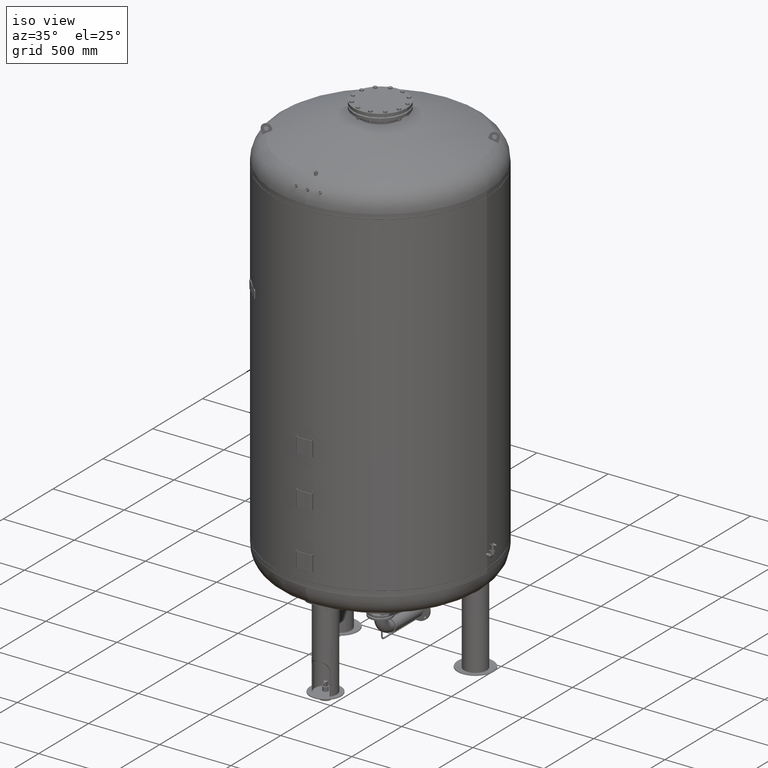
[diagram: clean part render]
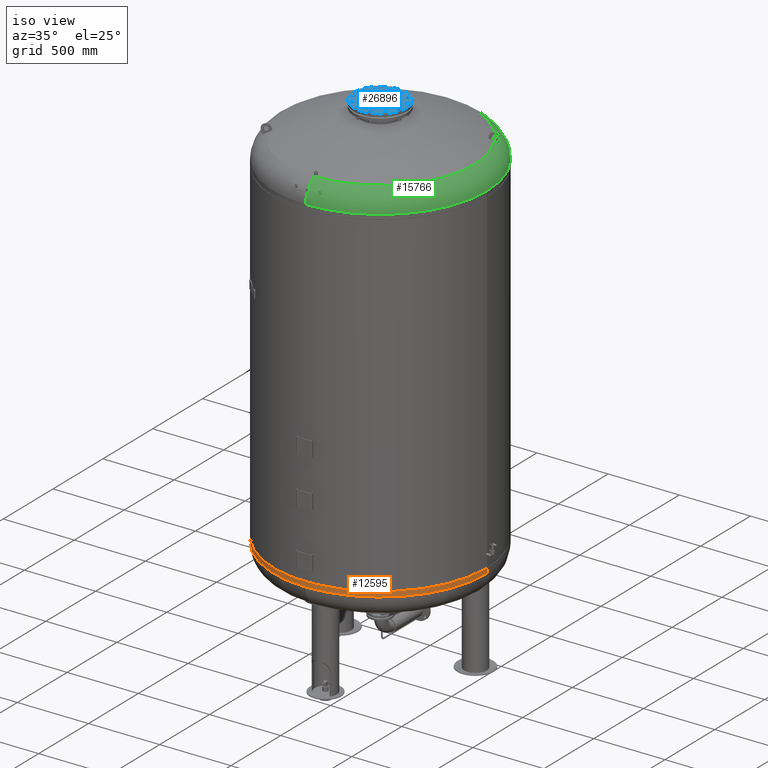
[diagram: same view with three faces highlighted in distinct colors, each labeled with its STEP entity id]
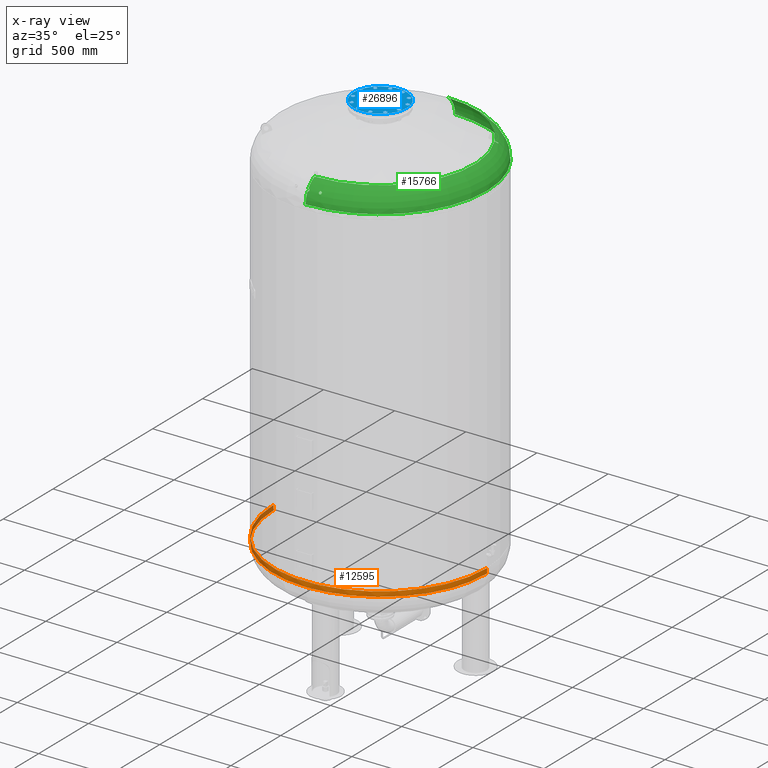
[diagram: x-ray of the same camera — body ghosted, the three highlighted faces saturated]
A machine part, iso view with three faces highlighted in distinct colors.
The next image is the same camera in x-ray (body ghosted, the three faces saturated) — at least one of them is partly hidden behind the body in this view.
Their STEP definitions:

[orange] entity #12595 — the highlighted cylindrical surface (partial cylindrical patch) has radius 750 mm, axis along (-0, -0, 1).
#12403=CARTESIAN_POINT('',(-750.0,-6.062002E-014,818.999999999999890));
#12404=VERTEX_POINT('',#12403);
#12405=CARTESIAN_POINT('',(-750.0,-5.423428E-014,784.237667415897930));
#12406=VERTEX_POINT('',#12405);
#12407=CARTESIAN_POINT('',(-750.0,-6.062002E-014,818.999999999999890));
#12408=DIRECTION('',(0.0,0.0,-1.0));
#12409=VECTOR('',#12408,34.762332584101955);
#12410=LINE('',#12407,#12409);
#12411=EDGE_CURVE('',#12404,#12406,#12410,.T.);
#12413=CARTESIAN_POINT('',(750.0,3.122546E-014,819.000000000000110));
#12414=VERTEX_POINT('',#12413);
#12422=CARTESIAN_POINT('',(750.0,3.761120E-014,784.237667415898160));
#12423=VERTEX_POINT('',#12422);
#12424=CARTESIAN_POINT('',(750.0,3.122546E-014,819.000000000000110));
#12425=DIRECTION('',(0.0,0.0,-1.0));
#12426=VECTOR('',#12425,34.762332584101955);
#12427=LINE('',#12424,#12426);
#12428=EDGE_CURVE('',#12414,#12423,#12427,.T.);
#12454=CARTESIAN_POINT('',(-7.105427E-014,-750.0,784.237667415898040));
#12455=VERTEX_POINT('',#12454);
#12465=CARTESIAN_POINT('',(-5.075605E-014,-5.423428E-014,784.237667415898160));
#12466=DIRECTION('',(0.0,0.0,1.0));
#12467=DIRECTION('',(-1.0,0.0,0.0));
#12468=AXIS2_PLACEMENT_3D('',#12465,#12466,#12467);
#12469=CIRCLE('',#12468,750.0);
#12470=EDGE_CURVE('',#12406,#12455,#12469,.T.);
#12567=CARTESIAN_POINT('',(-5.075605E-014,-5.423428E-014,784.237667415898160));
#12568=DIRECTION('',(0.0,0.0,1.0));
#12569=DIRECTION('',(-1.0,0.0,0.0));
#12570=AXIS2_PLACEMENT_3D('',#12567,#12568,#12569);
#12571=CIRCLE('',#12570,750.0);
#12572=EDGE_CURVE('',#12455,#12423,#12571,.T.);
#12577=CARTESIAN_POINT('',(-5.374415E-014,-5.742715E-014,801.618833707949080));
#12578=DIRECTION('',(-1.719159E-016,-1.836970E-016,1.0));
#12579=DIRECTION('',(-1.0,0.0,0.0));
#12580=AXIS2_PLACEMENT_3D('',#12577,#12578,#12579);
#12581=CYLINDRICAL_SURFACE('',#12580,750.0);
#12582=ORIENTED_EDGE('',*,*,#12411,.T.);
#12583=ORIENTED_EDGE('',*,*,#12470,.T.);
#12584=ORIENTED_EDGE('',*,*,#12572,.T.);
#12585=ORIENTED_EDGE('',*,*,#12428,.F.);
#12586=CARTESIAN_POINT('',(-5.673224E-014,-6.062002E-014,819.0));
#12587=DIRECTION('',(0.0,0.0,1.0));
#12588=DIRECTION('',(-1.0,0.0,0.0));
#12589=AXIS2_PLACEMENT_3D('',#12586,#12587,#12588);
#12590=CIRCLE('',#12589,750.0);
#12591=EDGE_CURVE('',#12404,#12414,#12590,.T.);
#12592=ORIENTED_EDGE('',*,*,#12591,.F.);
#12593=EDGE_LOOP('',(#12582,#12583,#12584,#12585,#12592));
#12594=FACE_OUTER_BOUND('',#12593,.T.);
#12595=ADVANCED_FACE('',(#12594),#12581,.T.);

[blue] entity #26896 — the highlighted planar face has unit normal (0, 0, 1).
#19134=CARTESIAN_POINT('',(-187.500000000000000,0.0,3590.0));
#19135=VERTEX_POINT('',#19134);
#19151=CARTESIAN_POINT('',(187.500000000000000,-2.296137E-014,3590.0));
#19152=VERTEX_POINT('',#19151);
#19159=CARTESIAN_POINT('',(0.0,0.0,3590.0));
#19160=DIRECTION('',(0.0,0.0,-1.0));
#19161=DIRECTION('',(-1.0,0.0,0.0));
#19162=AXIS2_PLACEMENT_3D('',#19159,#19160,#19161);
#19163=CIRCLE('',#19162,187.500000000000000);
#19164=EDGE_CURVE('',#19152,#19135,#19163,.T.);
#24390=CARTESIAN_POINT('',(157.729139400922860,30.104983413641008,3590.0));
#24391=VERTEX_POINT('',#24390);
#24392=CARTESIAN_POINT('',(148.288440171855850,40.247625971983268,3590.0));
#24393=VERTEX_POINT('',#24392);
#24394=CARTESIAN_POINT('',(157.729139400922860,30.104983413641008,3590.0));
#24395=DIRECTION('',(-0.681323780155013,0.731982176419128,0.0));
#24396=VECTOR('',#24395,13.856406460551090);
#24397=LINE('',#24394,#24396);
#24398=EDGE_CURVE('',#24391,#24393,#24397,.T.);
#24430=CARTESIAN_POINT('',(171.233275132485970,33.209547496330110,3590.0));
#24431=VERTEX_POINT('',#24430);
#24432=CARTESIAN_POINT('',(171.233275132485970,33.209547496330110,3590.0));
#24433=DIRECTION('',(-0.974577049973894,-0.224052613607123,0.0));
#24434=VECTOR('',#24433,13.856406460551119);
#24435=LINE('',#24432,#24434);
#24436=EDGE_CURVE('',#24431,#24391,#24435,.T.);
#24461=CARTESIAN_POINT('',(175.296711634982050,46.456754137361422,3590.0));
#24462=VERTEX_POINT('',#24461);
#24463=CARTESIAN_POINT('',(175.296711634982050,46.456754137361422,3590.0));
#24464=DIRECTION('',(-0.293253269818881,-0.956034790026249,0.0));
#24465=VECTOR('',#24464,13.856406460551076);
#24466=LINE('',#24463,#24465);
#24467=EDGE_CURVE('',#24462,#24431,#24466,.T.);
#24492=CARTESIAN_POINT('',(152.351876674351930,53.494832613014587,3590.0));
#24493=VERTEX_POINT('',#24492);
#24494=CARTESIAN_POINT('',(148.288440171855850,40.247625971983268,3590.0));
#24495=DIRECTION('',(0.293253269818881,0.956034790026249,0.0));
#24496=VECTOR('',#24495,13.856406460551083);
#24497=LINE('',#24494,#24496);
#24498=EDGE_CURVE('',#24393,#24493,#24497,.T.);
#24523=CARTESIAN_POINT('',(165.856012405915040,56.599396695703689,3590.0));
#24524=VERTEX_POINT('',#24523);
#24525=CARTESIAN_POINT('',(152.351876674351930,53.494832613014587,3590.0));
#24526=DIRECTION('',(0.974577049973894,0.224052613607123,0.0));
#24527=VECTOR('',#24526,13.856406460551119);
#24528=LINE('',#24525,#24527);
#24529=EDGE_CURVE('',#24493,#24524,#24528,.T.);
#24554=CARTESIAN_POINT('',(165.856012405915040,56.599396695703689,3590.0));
#24555=DIRECTION('',(0.681323780155012,-0.731982176419129,0.0));
#24556=VECTOR('',#24555,13.856406460551096);
#24557=LINE('',#24554,#24556);
#24558=EDGE_CURVE('',#24524,#24462,#24557,.T.);
#24590=CARTESIAN_POINT('',(121.544949931435720,104.936250117183760,3590.0));
#24591=VERTEX_POINT('',#24590);
#24592=CARTESIAN_POINT('',(108.297743290404380,108.999686619679820,3590.0));
#24593=VERTEX_POINT('',#24592);
#24594=CARTESIAN_POINT('',(121.544949931435720,104.936250117183760,3590.0));
#24595=DIRECTION('',(-0.956034790026250,0.293253269818880,0.0));
#24596=VECTOR('',#24595,13.856406460551101);
#24597=LINE('',#24594,#24596);
#24598=EDGE_CURVE('',#24591,#24593,#24597,.T.);
#24630=CARTESIAN_POINT('',(131.687592489777960,114.376949346250780,3590.0));
#24631=VERTEX_POINT('',#24630);
#24632=CARTESIAN_POINT('',(131.687592489777960,114.376949346250780,3590.0));
#24633=DIRECTION('',(-0.731982176419127,-0.681323780155014,0.0));
#24634=VECTOR('',#24633,13.856406460551080);
#24635=LINE('',#24632,#24634);
#24636=EDGE_CURVE('',#24631,#24591,#24635,.T.);
#24661=CARTESIAN_POINT('',(128.583028407088880,127.881085077813880,3590.0));
#24662=VERTEX_POINT('',#24661);
#24663=CARTESIAN_POINT('',(128.583028407088880,127.881085077813880,3590.0));
#24664=DIRECTION('',(0.224052613607122,-0.974577049973894,0.0));
#24665=VECTOR('',#24664,13.856406460551099);
#24666=LINE('',#24663,#24665);
#24667=EDGE_CURVE('',#24662,#24631,#24666,.T.);
#24692=CARTESIAN_POINT('',(105.193179207715300,122.503822351242900,3590.0));
#24693=VERTEX_POINT('',#24692);
#24694=CARTESIAN_POINT('',(108.297743290404380,108.999686619679820,3590.0));
#24695=DIRECTION('',(-0.224052613607122,0.974577049973894,0.0));
#24696=VECTOR('',#24695,13.856406460551087);
#24697=LINE('',#24694,#24696);
#24698=EDGE_CURVE('',#24593,#24693,#24697,.T.);
#24723=CARTESIAN_POINT('',(115.335821766057560,131.944521580309950,3590.0));
#24724=VERTEX_POINT('',#24723);
#24725=CARTESIAN_POINT('',(105.193179207715300,122.503822351242900,3590.0));
#24726=DIRECTION('',(0.731982176419127,0.681323780155014,0.0));
#24727=VECTOR('',#24726,13.856406460551121);
#24728=LINE('',#24725,#24727);
#24729=EDGE_CURVE('',#24693,#24724,#24728,.T.);
#24754=CARTESIAN_POINT('',(115.335821766057560,131.944521580309950,3590.0));
#24755=DIRECTION('',(0.956034790026249,-0.293253269818881,0.0));
#24756=VECTOR('',#24755,13.856406460551076);
#24757=LINE('',#24754,#24756);
#24758=EDGE_CURVE('',#24724,#24662,#24757,.T.);
#24790=CARTESIAN_POINT('',(52.792889283739193,151.649933345076730,3590.0));
#24791=VERTEX_POINT('',#24790);
#24792=CARTESIAN_POINT('',(39.288753552176118,148.545369262387680,3590.0));
#24793=VERTEX_POINT('',#24792);
#24794=CARTESIAN_POINT('',(52.792889283739193,151.649933345076730,3590.0));
#24795=DIRECTION('',(-0.974577049973894,-0.224052613607120,0.0));
#24796=VECTOR('',#24795,13.856406460551073);
#24797=LINE('',#24794,#24796);
#24798=EDGE_CURVE('',#24791,#24793,#24797,.T.);
#24830=CARTESIAN_POINT('',(56.856325786235274,164.897139986108100,3590.0));
#24831=VERTEX_POINT('',#24830);
#24832=CARTESIAN_POINT('',(56.856325786235274,164.897139986108100,3590.0));
#24833=DIRECTION('',(-0.293253269818881,-0.956034790026249,0.0));
#24834=VECTOR('',#24833,13.856406460551133);
#24835=LINE('',#24832,#24834);
#24836=EDGE_CURVE('',#24831,#24791,#24835,.T.);
#24861=CARTESIAN_POINT('',(47.415626557168267,175.039782544450330,3590.0));
#24862=VERTEX_POINT('',#24861);
#24863=CARTESIAN_POINT('',(47.415626557168267,175.039782544450330,3590.0));
#24864=DIRECTION('',(0.681323780155014,-0.731982176419128,0.0));
#24865=VECTOR('',#24864,13.856406460551069);
#24866=LINE('',#24863,#24865);
#24867=EDGE_CURVE('',#24862,#24831,#24866,.T.);
#24892=CARTESIAN_POINT('',(29.848054323109103,158.688011820729910,3590.0));
#24893=VERTEX_POINT('',#24892);
#24894=CARTESIAN_POINT('',(39.288753552176118,148.545369262387680,3590.0));
#24895=DIRECTION('',(-0.681323780155014,0.731982176419127,0.0));
#24896=VECTOR('',#24895,13.856406460551076);
#24897=LINE('',#24894,#24896);
#24898=EDGE_CURVE('',#24793,#24893,#24897,.T.);
#24923=CARTESIAN_POINT('',(33.911490825605156,171.935218461761250,3590.0));
#24924=VERTEX_POINT('',#24923);
#24925=CARTESIAN_POINT('',(29.848054323109103,158.688011820729910,3590.0));
#24926=DIRECTION('',(0.293253269818879,0.956034790026250,0.0));
#24927=VECTOR('',#24926,13.856406460551097);
#24928=LINE('',#24925,#24927);
#24929=EDGE_CURVE('',#24893,#24924,#24928,.T.);
#24954=CARTESIAN_POINT('',(33.911490825605156,171.935218461761250,3590.0));
#24955=DIRECTION('',(0.974577049973894,0.224052613607121,0.0));
#24956=VECTOR('',#24955,13.856406460551113);
#24957=LINE('',#24954,#24956);
#24958=EDGE_CURVE('',#24924,#24862,#24957,.T.);
#24990=CARTESIAN_POINT('',(-30.104983413641008,157.729139400922860,3590.0));
#24991=VERTEX_POINT('',#24990);
#24992=CARTESIAN_POINT('',(-40.247625971983268,148.288440171855850,3590.0));
#24993=VERTEX_POINT('',#24992);
#24994=CARTESIAN_POINT('',(-30.104983413641008,157.729139400922860,3590.0));
#24995=DIRECTION('',(-0.731982176419128,-0.681323780155013,0.0));
#24996=VECTOR('',#24995,13.856406460551090);
#24997=LINE('',#24994,#24996);
#24998=EDGE_CURVE('',#24991,#24993,#24997,.T.);
#25030=CARTESIAN_POINT('',(-33.209547496330110,171.233275132485970,3590.0));
#25031=VERTEX_POINT('',#25030);
#25032=CARTESIAN_POINT('',(-33.209547496330110,171.233275132485970,3590.0));
#25033=DIRECTION('',(0.224052613607123,-0.974577049973894,0.0));
#25034=VECTOR('',#25033,13.856406460551119);
#25035=LINE('',#25032,#25034);
#25036=EDGE_CURVE('',#25031,#24991,#25035,.T.);
#25061=CARTESIAN_POINT('',(-46.456754137361422,175.296711634982050,3590.0));
#25062=VERTEX_POINT('',#25061);
#25063=CARTESIAN_POINT('',(-46.456754137361422,175.296711634982050,3590.0));
#25064=DIRECTION('',(0.956034790026249,-0.293253269818881,0.0));
#25065=VECTOR('',#25064,13.856406460551076);
#25066=LINE('',#25063,#25065);
#25067=EDGE_CURVE('',#25062,#25031,#25066,.T.);
#25092=CARTESIAN_POINT('',(-53.494832613014587,152.351876674351930,3590.0));
#25093=VERTEX_POINT('',#25092);
#25094=CARTESIAN_POINT('',(-40.247625971983268,148.288440171855850,3590.0));
#25095=DIRECTION('',(-0.956034790026249,0.293253269818881,0.0));
#25096=VECTOR('',#25095,13.856406460551083);
#25097=LINE('',#25094,#25096);
#25098=EDGE_CURVE('',#24993,#25093,#25097,.T.);
#25123=CARTESIAN_POINT('',(-56.599396695703689,165.856012405915040,3590.0));
#25124=VERTEX_POINT('',#25123);
#25125=CARTESIAN_POINT('',(-53.494832613014587,152.351876674351930,3590.0));
#25126=DIRECTION('',(-0.224052613607123,0.974577049973894,0.0));
#25127=VECTOR('',#25126,13.856406460551119);
#25128=LINE('',#25125,#25127);
#25129=EDGE_CURVE('',#25093,#25124,#25128,.T.);
#25154=CARTESIAN_POINT('',(-56.599396695703689,165.856012405915040,3590.0));
#25155=DIRECTION('',(0.731982176419129,0.681323780155012,0.0));
#25156=VECTOR('',#25155,13.856406460551096);
#25157=LINE('',#25154,#25156);
#25158=EDGE_CURVE('',#25124,#25062,#25157,.T.);
#25190=CARTESIAN_POINT('',(-104.936250117183700,121.544949931435750,3590.0));
#25191=VERTEX_POINT('',#25190);
#25192=CARTESIAN_POINT('',(-108.999686619679760,108.297743290404440,3590.0));
#25193=VERTEX_POINT('',#25192);
#25194=CARTESIAN_POINT('',(-104.936250117183700,121.544949931435750,3590.0));
#25195=DIRECTION('',(-0.293253269818880,-0.956034790026249,0.0));
#25196=VECTOR('',#25195,13.856406460551073);
#25197=LINE('',#25194,#25196);
#25198=EDGE_CURVE('',#25191,#25193,#25197,.T.);
#25230=CARTESIAN_POINT('',(-114.376949346250730,131.687592489778010,3590.0));
#25231=VERTEX_POINT('',#25230);
#25232=CARTESIAN_POINT('',(-114.376949346250730,131.687592489778010,3590.0));
#25233=DIRECTION('',(0.681323780155013,-0.731982176419128,0.0));
#25234=VECTOR('',#25233,13.856406460551101);
#25235=LINE('',#25232,#25234);
#25236=EDGE_CURVE('',#25231,#25191,#25235,.T.);
#25261=CARTESIAN_POINT('',(-127.881085077813810,128.583028407088930,3590.0));
#25262=VERTEX_POINT('',#25261);
#25263=CARTESIAN_POINT('',(-127.881085077813810,128.583028407088930,3590.0));
#25264=DIRECTION('',(0.974577049973894,0.224052613607122,0.0));
#25265=VECTOR('',#25264,13.856406460551087);
#25266=LINE('',#25263,#25265);
#25267=EDGE_CURVE('',#25262,#25231,#25266,.T.);
#25292=CARTESIAN_POINT('',(-122.503822351242850,105.193179207715360,3590.0));
#25293=VERTEX_POINT('',#25292);
#25294=CARTESIAN_POINT('',(-108.999686619679760,108.297743290404440,3590.0));
#25295=DIRECTION('',(-0.974577049973894,-0.224052613607122,0.0));
#25296=VECTOR('',#25295,13.856406460551087);
#25297=LINE('',#25294,#25296);
#25298=EDGE_CURVE('',#25193,#25293,#25297,.T.);
#25323=CARTESIAN_POINT('',(-131.944521580309900,115.335821766057620,3590.0));
#25324=VERTEX_POINT('',#25323);
#25325=CARTESIAN_POINT('',(-122.503822351242850,105.193179207715360,3590.0));
#25326=DIRECTION('',(-0.681323780155014,0.731982176419127,0.0));
#25327=VECTOR('',#25326,13.856406460551121);
#25328=LINE('',#25325,#25327);
#25329=EDGE_CURVE('',#25293,#25324,#25328,.T.);
#25354=CARTESIAN_POINT('',(-131.944521580309900,115.335821766057620,3590.0));
#25355=DIRECTION('',(0.293253269818882,0.956034790026249,0.0));
#25356=VECTOR('',#25355,13.856406460551081);
#25357=LINE('',#25354,#25356);
#25358=EDGE_CURVE('',#25324,#25262,#25357,.T.);
#25390=CARTESIAN_POINT('',(-151.649933345076730,52.792889283739214,3590.0));
#25391=VERTEX_POINT('',#25390);
#25392=CARTESIAN_POINT('',(-148.545369262387650,39.288753552176125,3590.0));
#25393=VERTEX_POINT('',#25392);
#25394=CARTESIAN_POINT('',(-151.649933345076730,52.792889283739214,3590.0));
#25395=DIRECTION('',(0.224052613607122,-0.974577049973894,0.0));
#25396=VECTOR('',#25395,13.856406460551092);
#25397=LINE('',#25394,#25396);
#25398=EDGE_CURVE('',#25391,#25393,#25397,.T.);
#25430=CARTESIAN_POINT('',(-164.897139986108100,56.856325786235296,3590.0));
#25431=VERTEX_POINT('',#25430);
#25432=CARTESIAN_POINT('',(-164.897139986108100,56.856325786235296,3590.0));
#25433=DIRECTION('',(0.956034790026249,-0.293253269818881,0.0));
#25434=VECTOR('',#25433,13.856406460551133);
#25435=LINE('',#25432,#25434);
#25436=EDGE_CURVE('',#25431,#25391,#25435,.T.);
#25461=CARTESIAN_POINT('',(-175.039782544450300,47.415626557168260,3590.0));
#25462=VERTEX_POINT('',#25461);
#25463=CARTESIAN_POINT('',(-175.039782544450300,47.415626557168260,3590.0));
#25464=DIRECTION('',(0.731982176419126,0.681323780155016,0.0));
#25465=VECTOR('',#25464,13.856406460551069);
#25466=LINE('',#25463,#25465);
#25467=EDGE_CURVE('',#25462,#25431,#25466,.T.);
#25492=CARTESIAN_POINT('',(-158.688011820729910,29.848054323109110,3590.0));
#25493=VERTEX_POINT('',#25492);
#25494=CARTESIAN_POINT('',(-148.545369262387650,39.288753552176125,3590.0));
#25495=DIRECTION('',(-0.731982176419128,-0.681323780155013,0.0));
#25496=VECTOR('',#25495,13.856406460551096);
#25497=LINE('',#25494,#25496);
#25498=EDGE_CURVE('',#25393,#25493,#25497,.T.);
#25523=CARTESIAN_POINT('',(-171.935218461761250,33.911490825605171,3590.0));
#25524=VERTEX_POINT('',#25523);
#25525=CARTESIAN_POINT('',(-158.688011820729910,29.848054323109110,3590.0));
#25526=DIRECTION('',(-0.956034790026250,0.293253269818880,0.0));
#25527=VECTOR('',#25526,13.856406460551101);
#25528=LINE('',#25525,#25527);
#25529=EDGE_CURVE('',#25493,#25524,#25528,.T.);
#25554=CARTESIAN_POINT('',(-171.935218461761250,33.911490825605171,3590.0));
#25555=DIRECTION('',(-0.224052613607120,0.974577049973894,0.0));
#25556=VECTOR('',#25555,13.856406460551087);
#25557=LINE('',#25554,#25556);
#25558=EDGE_CURVE('',#25524,#25462,#25557,.T.);
#25590=CARTESIAN_POINT('',(-157.729139400922860,-30.104983413640987,3590.0));
#25591=VERTEX_POINT('',#25590);
#25592=CARTESIAN_POINT('',(-148.288440171855850,-40.247625971983247,3590.0));
#25593=VERTEX_POINT('',#25592);
#25594=CARTESIAN_POINT('',(-157.729139400922860,-30.104983413640987,3590.0));
#25595=DIRECTION('',(0.681323780155013,-0.731982176419128,0.0));
#25596=VECTOR('',#25595,13.856406460551090);
#25597=LINE('',#25594,#25596);
#25598=EDGE_CURVE('',#25591,#25593,#25597,.T.);
#25630=CARTESIAN_POINT('',(-171.233275132486000,-33.209547496330096,3590.0));
#25631=VERTEX_POINT('',#25630);
#25632=CARTESIAN_POINT('',(-171.233275132486000,-33.209547496330096,3590.0));
#25633=DIRECTION('',(0.974577049973894,0.224052613607123,0.0));
#25634=VECTOR('',#25633,13.856406460551147);
#25635=LINE('',#25632,#25634);
#25636=EDGE_CURVE('',#25631,#25591,#25635,.T.);
#25661=CARTESIAN_POINT('',(-175.296711634982050,-46.456754137361401,3590.0));
#25662=VERTEX_POINT('',#25661);
#25663=CARTESIAN_POINT('',(-175.296711634982050,-46.456754137361401,3590.0));
#25664=DIRECTION('',(0.293253269818880,0.956034790026250,0.0));
#25665=VECTOR('',#25664,13.856406460551062);
#25666=LINE('',#25663,#25665);
#25667=EDGE_CURVE('',#25662,#25631,#25666,.T.);
#25692=CARTESIAN_POINT('',(-152.351876674351960,-53.494832613014580,3590.0));
#25693=VERTEX_POINT('',#25692);
#25694=CARTESIAN_POINT('',(-148.288440171855850,-40.247625971983247,3590.0));
#25695=DIRECTION('',(-0.293253269818883,-0.956034790026249,0.0));
#25696=VECTOR('',#25695,13.856406460551106);
#25697=LINE('',#25694,#25696);
#25698=EDGE_CURVE('',#25593,#25693,#25697,.T.);
#25723=CARTESIAN_POINT('',(-165.856012405915070,-56.599396695703646,3590.0));
#25724=VERTEX_POINT('',#25723);
#25725=CARTESIAN_POINT('',(-152.351876674351960,-53.494832613014580,3590.0));
#25726=DIRECTION('',(-0.974577049973894,-0.224052613607121,0.0));
#25727=VECTOR('',#25726,13.856406460551110);
#25728=LINE('',#25725,#25727);
#25729=EDGE_CURVE('',#25693,#25724,#25728,.T.);
#25754=CARTESIAN_POINT('',(-165.856012405915070,-56.599396695703646,3590.0));
#25755=DIRECTION('',(-0.681323780155012,0.731982176419129,0.0));
#25756=VECTOR('',#25755,13.856406460551062);
#25757=LINE('',#25754,#25756);
#25758=EDGE_CURVE('',#25724,#25662,#25757,.T.);
#25790=CARTESIAN_POINT('',(-121.544949931435750,-104.936250117183680,3590.0));
#25791=VERTEX_POINT('',#25790);
#25792=CARTESIAN_POINT('',(-108.297743290404440,-108.999686619679760,3590.0));
#25793=VERTEX_POINT('',#25792);
#25794=CARTESIAN_POINT('',(-121.544949931435750,-104.936250117183680,3590.0));
#25795=DIRECTION('',(0.956034790026249,-0.293253269818882,0.0));
#25796=VECTOR('',#25795,13.856406460551081);
#25797=LINE('',#25794,#25796);
#25798=EDGE_CURVE('',#25791,#25793,#25797,.T.);
#25830=CARTESIAN_POINT('',(-131.687592489778010,-114.376949346250730,3590.0));
#25831=VERTEX_POINT('',#25830);
#25832=CARTESIAN_POINT('',(-131.687592489778010,-114.376949346250730,3590.0));
#25833=DIRECTION('',(0.731982176419127,0.681323780155014,0.0));
#25834=VECTOR('',#25833,13.856406460551121);
#25835=LINE('',#25832,#25834);
#25836=EDGE_CURVE('',#25831,#25791,#25835,.T.);
#25861=CARTESIAN_POINT('',(-128.583028407088930,-127.881085077813790,3590.0));
#25862=VERTEX_POINT('',#25861);
#25863=CARTESIAN_POINT('',(-128.583028407088930,-127.881085077813790,3590.0));
#25864=DIRECTION('',(-0.224052613607122,0.974577049973894,0.0));
#25865=VECTOR('',#25864,13.856406460551071);
#25866=LINE('',#25863,#25865);
#25867=EDGE_CURVE('',#25862,#25831,#25866,.T.);
#25892=CARTESIAN_POINT('',(-105.193179207715360,-122.503822351242850,3590.0));
#25893=VERTEX_POINT('',#25892);
#25894=CARTESIAN_POINT('',(-108.297743290404440,-108.999686619679760,3590.0));
#25895=DIRECTION('',(0.224052613607122,-0.974577049973894,0.0));
#25896=VECTOR('',#25895,13.856406460551087);
#25897=LINE('',#25894,#25896);
#25898=EDGE_CURVE('',#25793,#25893,#25897,.T.);
#25923=CARTESIAN_POINT('',(-115.335821766057620,-131.944521580309900,3590.0));
#25924=VERTEX_POINT('',#25923);
#25925=CARTESIAN_POINT('',(-105.193179207715360,-122.503822351242850,3590.0));
#25926=DIRECTION('',(-0.731982176419127,-0.681323780155014,0.0));
#25927=VECTOR('',#25926,13.856406460551121);
#25928=LINE('',#25925,#25927);
#25929=EDGE_CURVE('',#25893,#25924,#25928,.T.);
#25954=CARTESIAN_POINT('',(-115.335821766057620,-131.944521580309900,3590.0));
#25955=DIRECTION('',(-0.956034790026249,0.293253269818883,0.0));
#25956=VECTOR('',#25955,13.856406460551085);
#25957=LINE('',#25954,#25956);
#25958=EDGE_CURVE('',#25924,#25862,#25957,.T.);
#25990=CARTESIAN_POINT('',(-52.792889283739228,-151.649933345076730,3590.0));
#25991=VERTEX_POINT('',#25990);
#25992=CARTESIAN_POINT('',(-39.288753552176132,-148.545369262387680,3590.0));
#25993=VERTEX_POINT('',#25992);
#25994=CARTESIAN_POINT('',(-52.792889283739228,-151.649933345076730,3590.0));
#25995=DIRECTION('',(0.974577049973894,0.224052613607120,0.0));
#25996=VECTOR('',#25995,13.856406460551094);
#25997=LINE('',#25994,#25996);
#25998=EDGE_CURVE('',#25991,#25993,#25997,.T.);
#26030=CARTESIAN_POINT('',(-56.856325786235296,-164.897139986108100,3590.0));
#26031=VERTEX_POINT('',#26030);
#26032=CARTESIAN_POINT('',(-56.856325786235296,-164.897139986108100,3590.0));
#26033=DIRECTION('',(0.293253269818880,0.956034790026250,0.0));
#26034=VECTOR('',#26033,13.856406460551129);
#26035=LINE('',#26032,#26034);
#26036=EDGE_CURVE('',#26031,#25991,#26035,.T.);
#26061=CARTESIAN_POINT('',(-47.415626557168281,-175.039782544450300,3590.0));
#26062=VERTEX_POINT('',#26061);
#26063=CARTESIAN_POINT('',(-47.415626557168281,-175.039782544450300,3590.0));
#26064=DIRECTION('',(-0.681323780155015,0.731982176419126,0.0));
#26065=VECTOR('',#26064,13.856406460551055);
#26066=LINE('',#26063,#26065);
#26067=EDGE_CURVE('',#26062,#26031,#26066,.T.);
#26092=CARTESIAN_POINT('',(-29.848054323109121,-158.688011820729910,3590.0));
#26093=VERTEX_POINT('',#26092);
#26094=CARTESIAN_POINT('',(-39.288753552176132,-148.545369262387680,3590.0));
#26095=DIRECTION('',(0.681323780155014,-0.731982176419127,0.0));
#26096=VECTOR('',#26095,13.856406460551073);
#26097=LINE('',#26094,#26096);
#26098=EDGE_CURVE('',#25993,#26093,#26097,.T.);
#26123=CARTESIAN_POINT('',(-33.911490825605199,-171.935218461761280,3590.0));
#26124=VERTEX_POINT('',#26123);
#26125=CARTESIAN_POINT('',(-29.848054323109121,-158.688011820729910,3590.0));
#26126=DIRECTION('',(-0.293253269818880,-0.956034790026249,0.0));
#26127=VECTOR('',#26126,13.856406460551133);
#26128=LINE('',#26125,#26127);
#26129=EDGE_CURVE('',#26093,#26124,#26128,.T.);
#26154=CARTESIAN_POINT('',(-33.911490825605199,-171.935218461761280,3590.0));
#26155=DIRECTION('',(-0.974577049973895,-0.224052613607118,0.0));
#26156=VECTOR('',#26155,13.856406460551074);
#26157=LINE('',#26154,#26156);
#26158=EDGE_CURVE('',#26124,#26062,#26157,.T.);
#26190=CARTESIAN_POINT('',(30.104983413640952,-157.729139400922890,3590.0));
#26191=VERTEX_POINT('',#26190);
#26192=CARTESIAN_POINT('',(40.247625971983211,-148.288440171855880,3590.0));
#26193=VERTEX_POINT('',#26192);
#26194=CARTESIAN_POINT('',(30.104983413640952,-157.729139400922890,3590.0));
#26195=DIRECTION('',(0.731982176419128,0.681323780155013,0.0));
#26196=VECTOR('',#26195,13.856406460551090);
#26197=LINE('',#26194,#26196);
#26198=EDGE_CURVE('',#26191,#26193,#26197,.T.);
#26230=CARTESIAN_POINT('',(33.209547496330039,-171.233275132486000,3590.0));
#26231=VERTEX_POINT('',#26230);
#26232=CARTESIAN_POINT('',(33.209547496330039,-171.233275132486000,3590.0));
#26233=DIRECTION('',(-0.224052613607122,0.974577049973894,0.0));
#26234=VECTOR('',#26233,13.856406460551115);
#26235=LINE('',#26232,#26234);
#26236=EDGE_CURVE('',#26231,#26191,#26235,.T.);
#26261=CARTESIAN_POINT('',(46.456754137361351,-175.296711634982070,3590.0));
#26262=VERTEX_POINT('',#26261);
#26263=CARTESIAN_POINT('',(46.456754137361351,-175.296711634982070,3590.0));
#26264=DIRECTION('',(-0.956034790026249,0.293253269818881,0.0));
#26265=VECTOR('',#26264,13.856406460551076);
#26266=LINE('',#26263,#26265);
#26267=EDGE_CURVE('',#26262,#26231,#26266,.T.);
#26292=CARTESIAN_POINT('',(53.494832613014523,-152.351876674351960,3590.0));
#26293=VERTEX_POINT('',#26292);
#26294=CARTESIAN_POINT('',(40.247625971983211,-148.288440171855880,3590.0));
#26295=DIRECTION('',(0.956034790026249,-0.293253269818881,0.0));
#26296=VECTOR('',#26295,13.856406460551076);
#26297=LINE('',#26294,#26296);
#26298=EDGE_CURVE('',#26193,#26293,#26297,.T.);
#26323=CARTESIAN_POINT('',(56.599396695703625,-165.856012405915070,3590.0));
#26324=VERTEX_POINT('',#26323);
#26325=CARTESIAN_POINT('',(53.494832613014523,-152.351876674351960,3590.0));
#26326=DIRECTION('',(0.224052613607123,-0.974577049973894,0.0));
#26327=VECTOR('',#26326,13.856406460551119);
#26328=LINE('',#26325,#26327);
#26329=EDGE_CURVE('',#26293,#26324,#26328,.T.);
#26354=CARTESIAN_POINT('',(56.599396695703625,-165.856012405915070,3590.0));
#26355=DIRECTION('',(-0.731982176419129,-0.681323780155012,0.0));
#26356=VECTOR('',#26355,13.856406460551101);
#26357=LINE('',#26354,#26356);
#26358=EDGE_CURVE('',#26324,#26262,#26357,.T.);
#26390=CARTESIAN_POINT('',(104.936250117183660,-121.544949931435800,3590.0));
#26391=VERTEX_POINT('',#26390);
#26392=CARTESIAN_POINT('',(108.999686619679750,-108.297743290404470,3590.0));
#26393=VERTEX_POINT('',#26392);
#26394=CARTESIAN_POINT('',(104.936250117183660,-121.544949931435800,3590.0));
#26395=DIRECTION('',(0.293253269818882,0.956034790026249,0.0));
#26396=VECTOR('',#26395,13.856406460551094);
#26397=LINE('',#26394,#26396);
#26398=EDGE_CURVE('',#26391,#26393,#26397,.T.);
#26430=CARTESIAN_POINT('',(114.376949346250710,-131.687592489778040,3590.0));
#26431=VERTEX_POINT('',#26430);
#26432=CARTESIAN_POINT('',(114.376949346250710,-131.687592489778040,3590.0));
#26433=DIRECTION('',(-0.681323780155015,0.731982176419126,0.0));
#26434=VECTOR('',#26433,13.856406460551110);
#26435=LINE('',#26432,#26434);
#26436=EDGE_CURVE('',#26431,#26391,#26435,.T.);
#26461=CARTESIAN_POINT('',(127.881085077813760,-128.583028407088960,3590.0));
#26462=VERTEX_POINT('',#26461);
#26463=CARTESIAN_POINT('',(127.881085077813760,-128.583028407088960,3590.0));
#26464=DIRECTION('',(-0.974577049973894,-0.224052613607122,0.0));
#26465=VECTOR('',#26464,13.856406460551058);
#26466=LINE('',#26463,#26465);
#26467=EDGE_CURVE('',#26462,#26431,#26466,.T.);
#26492=CARTESIAN_POINT('',(122.503822351242830,-105.193179207715390,3590.0));
#26493=VERTEX_POINT('',#26492);
#26494=CARTESIAN_POINT('',(108.999686619679750,-108.297743290404470,3590.0));
#26495=DIRECTION('',(0.974577049973894,0.224052613607122,0.0));
#26496=VECTOR('',#26495,13.856406460551087);
#26497=LINE('',#26494,#26496);
#26498=EDGE_CURVE('',#26393,#26493,#26497,.T.);
#26523=CARTESIAN_POINT('',(131.944521580309870,-115.335821766057650,3590.0));
#26524=VERTEX_POINT('',#26523);
#26525=CARTESIAN_POINT('',(122.503822351242830,-105.193179207715390,3590.0));
#26526=DIRECTION('',(0.681323780155014,-0.731982176419127,0.0));
#26527=VECTOR('',#26526,13.856406460551110);
#26528=LINE('',#26525,#26527);
#26529=EDGE_CURVE('',#26493,#26524,#26528,.T.);
#26554=CARTESIAN_POINT('',(131.944521580309870,-115.335821766057650,3590.0));
#26555=DIRECTION('',(-0.293253269818883,-0.956034790026249,0.0));
#26556=VECTOR('',#26555,13.856406460551085);
#26557=LINE('',#26554,#26556);
#26558=EDGE_CURVE('',#26524,#26462,#26557,.T.);
#26590=CARTESIAN_POINT('',(151.649933345076730,-52.792889283739228,3590.0));
#26591=VERTEX_POINT('',#26590);
#26592=CARTESIAN_POINT('',(148.545369262387650,-39.288753552176139,3590.0));
#26593=VERTEX_POINT('',#26592);
#26594=CARTESIAN_POINT('',(151.649933345076730,-52.792889283739228,3590.0));
#26595=DIRECTION('',(-0.224052613607122,0.974577049973894,0.0));
#26596=VECTOR('',#26595,13.856406460551092);
#26597=LINE('',#26594,#26596);
#26598=EDGE_CURVE('',#26591,#26593,#26597,.T.);
#26630=CARTESIAN_POINT('',(164.897139986108070,-56.856325786235303,3590.0));
#26631=VERTEX_POINT('',#26630);
#26632=CARTESIAN_POINT('',(164.897139986108070,-56.856325786235303,3590.0));
#26633=DIRECTION('',(-0.956034790026249,0.293253269818881,0.0));
#26634=VECTOR('',#26633,13.856406460551105);
#26635=LINE('',#26632,#26634);
#26636=EDGE_CURVE('',#26631,#26591,#26635,.T.);
#26661=CARTESIAN_POINT('',(175.039782544450300,-47.415626557168295,3590.0));
#26662=VERTEX_POINT('',#26661);
#26663=CARTESIAN_POINT('',(175.039782544450300,-47.415626557168295,3590.0));
#26664=DIRECTION('',(-0.731982176419128,-0.681323780155014,0.0));
#26665=VECTOR('',#26664,13.856406460551069);
#26666=LINE('',#26663,#26665);
#26667=EDGE_CURVE('',#26662,#26631,#26666,.T.);
#26692=CARTESIAN_POINT('',(158.688011820729910,-29.848054323109132,3590.0));
#26693=VERTEX_POINT('',#26692);
#26694=CARTESIAN_POINT('',(148.545369262387650,-39.288753552176139,3590.0));
#26695=DIRECTION('',(0.731982176419128,0.681323780155013,0.0));
#26696=VECTOR('',#26695,13.856406460551090);
#26697=LINE('',#26694,#26696);
#26698=EDGE_CURVE('',#26593,#26693,#26697,.T.);
#26723=CARTESIAN_POINT('',(171.935218461761250,-33.911490825605206,3590.0));
#26724=VERTEX_POINT('',#26723);
#26725=CARTESIAN_POINT('',(158.688011820729910,-29.848054323109132,3590.0));
#26726=DIRECTION('',(0.956034790026249,-0.293253269818881,0.0));
#26727=VECTOR('',#26726,13.856406460551105);
#26728=LINE('',#26725,#26727);
#26729=EDGE_CURVE('',#26693,#26724,#26728,.T.);
#26754=CARTESIAN_POINT('',(171.935218461761250,-33.911490825605206,3590.0));
#26755=DIRECTION('',(0.224052613607120,-0.974577049973894,0.0));
#26756=VECTOR('',#26755,13.856406460551087);
#26757=LINE('',#26754,#26756);
#26758=EDGE_CURVE('',#26724,#26662,#26757,.T.);
#26785=CARTESIAN_POINT('',(-93.750000000000000,-7.888609E-031,3590.0));
#26786=DIRECTION('',(0.0,0.0,1.0));
#26787=DIRECTION('',(0.0,1.0,0.0));
#26788=AXIS2_PLACEMENT_3D('',#26785,#26786,#26787);
#26789=PLANE('',#26788);
#26790=CARTESIAN_POINT('',(0.0,0.0,3590.0));
#26791=DIRECTION('',(0.0,0.0,-1.0));
#26792=DIRECTION('',(-1.0,0.0,0.0));
#26793=AXIS2_PLACEMENT_3D('',#26790,#26791,#26792);
#26794=CIRCLE('',#26793,187.500000000000000);
#26795=EDGE_CURVE('',#19135,#19152,#26794,.T.);
#26796=ORIENTED_EDGE('',*,*,#26795,.F.);
#26797=ORIENTED_EDGE('',*,*,#19164,.F.);
#26798=EDGE_LOOP('',(#26796,#26797));
#26799=FACE_OUTER_BOUND('',#26798,.T.);
#26800=ORIENTED_EDGE('',*,*,#24398,.T.);
#26801=ORIENTED_EDGE('',*,*,#24498,.T.);
#26802=ORIENTED_EDGE('',*,*,#24529,.T.);
#26803=ORIENTED_EDGE('',*,*,#24558,.T.);
#26804=ORIENTED_EDGE('',*,*,#24467,.T.);
#26805=ORIENTED_EDGE('',*,*,#24436,.T.);
#26806=EDGE_LOOP('',(#26800,#26801,#26802,#26803,#26804,#26805));
#26807=FACE_BOUND('',#26806,.T.);
#26808=ORIENTED_EDGE('',*,*,#24598,.T.);
#26809=ORIENTED_EDGE('',*,*,#24698,.T.);
#26810=ORIENTED_EDGE('',*,*,#24729,.T.);
#26811=ORIENTED_EDGE('',*,*,#24758,.T.);
#26812=ORIENTED_EDGE('',*,*,#24667,.T.);
#26813=ORIENTED_EDGE('',*,*,#24636,.T.);
#26814=EDGE_LOOP('',(#26808,#26809,#26810,#26811,#26812,#26813));
#26815=FACE_BOUND('',#26814,.T.);
#26816=ORIENTED_EDGE('',*,*,#24798,.T.);
#26817=ORIENTED_EDGE('',*,*,#24898,.T.);
#26818=ORIENTED_EDGE('',*,*,#24929,.T.);
#26819=ORIENTED_EDGE('',*,*,#24958,.T.);
#26820=ORIENTED_EDGE('',*,*,#24867,.T.);
#26821=ORIENTED_EDGE('',*,*,#24836,.T.);
#26822=EDGE_LOOP('',(#26816,#26817,#26818,#26819,#26820,#26821));
#26823=FACE_BOUND('',#26822,.T.);
#26824=ORIENTED_EDGE('',*,*,#24998,.T.);
#26825=ORIENTED_EDGE('',*,*,#25098,.T.);
#26826=ORIENTED_EDGE('',*,*,#25129,.T.);
#26827=ORIENTED_EDGE('',*,*,#25158,.T.);
#26828=ORIENTED_EDGE('',*,*,#25067,.T.);
#26829=ORIENTED_EDGE('',*,*,#25036,.T.);
#26830=EDGE_LOOP('',(#26824,#26825,#26826,#26827,#26828,#26829));
#26831=FACE_BOUND('',#26830,.T.);
#26832=ORIENTED_EDGE('',*,*,#25198,.T.);
#26833=ORIENTED_EDGE('',*,*,#25298,.T.);
#26834=ORIENTED_EDGE('',*,*,#25329,.T.);
#26835=ORIENTED_EDGE('',*,*,#25358,.T.);
#26836=ORIENTED_EDGE('',*,*,#25267,.T.);
#26837=ORIENTED_EDGE('',*,*,#25236,.T.);
#26838=EDGE_LOOP('',(#26832,#26833,#26834,#26835,#26836,#26837));
#26839=FACE_BOUND('',#26838,.T.);
#26840=ORIENTED_EDGE('',*,*,#25398,.T.);
#26841=ORIENTED_EDGE('',*,*,#25498,.T.);
#26842=ORIENTED_EDGE('',*,*,#25529,.T.);
#26843=ORIENTED_EDGE('',*,*,#25558,.T.);
#26844=ORIENTED_EDGE('',*,*,#25467,.T.);
#26845=ORIENTED_EDGE('',*,*,#25436,.T.);
#26846=EDGE_LOOP('',(#26840,#26841,#26842,#26843,#26844,#26845));
#26847=FACE_BOUND('',#26846,.T.);
#26848=ORIENTED_EDGE('',*,*,#25598,.T.);
#26849=ORIENTED_EDGE('',*,*,#25698,.T.);
#26850=ORIENTED_EDGE('',*,*,#25729,.T.);
#26851=ORIENTED_EDGE('',*,*,#25758,.T.);
#26852=ORIENTED_EDGE('',*,*,#25667,.T.);
#26853=ORIENTED_EDGE('',*,*,#25636,.T.);
#26854=EDGE_LOOP('',(#26848,#26849,#26850,#26851,#26852,#26853));
#26855=FACE_BOUND('',#26854,.T.);
#26856=ORIENTED_EDGE('',*,*,#25798,.T.);
#26857=ORIENTED_EDGE('',*,*,#25898,.T.);
#26858=ORIENTED_EDGE('',*,*,#25929,.T.);
#26859=ORIENTED_EDGE('',*,*,#25958,.T.);
#26860=ORIENTED_EDGE('',*,*,#25867,.T.);
#26861=ORIENTED_EDGE('',*,*,#25836,.T.);
#26862=EDGE_LOOP('',(#26856,#26857,#26858,#26859,#26860,#26861));
#26863=FACE_BOUND('',#26862,.T.);
#26864=ORIENTED_EDGE('',*,*,#25998,.T.);
#26865=ORIENTED_EDGE('',*,*,#26098,.T.);
#26866=ORIENTED_EDGE('',*,*,#26129,.T.);
#26867=ORIENTED_EDGE('',*,*,#26158,.T.);
#26868=ORIENTED_EDGE('',*,*,#26067,.T.);
#26869=ORIENTED_EDGE('',*,*,#26036,.T.);
#26870=EDGE_LOOP('',(#26864,#26865,#26866,#26867,#26868,#26869));
#26871=FACE_BOUND('',#26870,.T.);
#26872=ORIENTED_EDGE('',*,*,#26198,.T.);
#26873=ORIENTED_EDGE('',*,*,#26298,.T.);
#26874=ORIENTED_EDGE('',*,*,#26329,.T.);
#26875=ORIENTED_EDGE('',*,*,#26358,.T.);
#26876=ORIENTED_EDGE('',*,*,#26267,.T.);
#26877=ORIENTED_EDGE('',*,*,#26236,.T.);
#26878=EDGE_LOOP('',(#26872,#26873,#26874,#26875,#26876,#26877));
#26879=FACE_BOUND('',#26878,.T.);
#26880=ORIENTED_EDGE('',*,*,#26398,.T.);
#26881=ORIENTED_EDGE('',*,*,#26498,.T.);
#26882=ORIENTED_EDGE('',*,*,#26529,.T.);
#26883=ORIENTED_EDGE('',*,*,#26558,.T.);
#26884=ORIENTED_EDGE('',*,*,#26467,.T.);
#26885=ORIENTED_EDGE('',*,*,#26436,.T.);
#26886=EDGE_LOOP('',(#26880,#26881,#26882,#26883,#26884,#26885));
#26887=FACE_BOUND('',#26886,.T.);
#26888=ORIENTED_EDGE('',*,*,#26598,.T.);
#26889=ORIENTED_EDGE('',*,*,#26698,.T.);
#26890=ORIENTED_EDGE('',*,*,#26729,.T.);
#26891=ORIENTED_EDGE('',*,*,#26758,.T.);
#26892=ORIENTED_EDGE('',*,*,#26667,.T.);
#26893=ORIENTED_EDGE('',*,*,#26636,.T.);
#26894=EDGE_LOOP('',(#26888,#26889,#26890,#26891,#26892,#26893));
#26895=FACE_BOUND('',#26894,.T.);
#26896=ADVANCED_FACE('',(#26799,#26807,#26815,#26823,#26831,#26839,#26847,#26855,#26863,#26871,#26879,#26887,#26895),#26789,.T.);

[green] entity #15766 — the highlighted toroidal blend (fillet) surface has major radius 591 mm and minor (blend) radius 159 mm.
#14677=CARTESIAN_POINT('',(3.122770E-014,-731.140193061976330,3288.873758403027800));
#14678=VERTEX_POINT('',#14677);
#14694=CARTESIAN_POINT('',(-4.552190E-014,-721.312989634743420,3304.864059968686900));
#14695=VERTEX_POINT('',#14694);
#14872=CARTESIAN_POINT('',(80.324619526775507,-725.631664467896030,3290.848132170746300));
#14873=VERTEX_POINT('',#14872);
#14889=CARTESIAN_POINT('',(85.635383923202426,-715.574285877654120,3305.762554782133100));
#14890=VERTEX_POINT('',#14889);
#14897=CARTESIAN_POINT('',(82.418225282518961,-715.625413797499390,3306.218126071017700));
#14898=VERTEX_POINT('',#14897);
#14899=CARTESIAN_POINT('',(85.635383923202426,-715.574285877654120,3305.762554782133100));
#14900=CARTESIAN_POINT('',(84.592095150121978,-715.479768309782000,3306.069582553987900));
#14901=CARTESIAN_POINT('',(83.502717674649233,-715.496735823227250,3306.223376532035200));
#14902=CARTESIAN_POINT('',(82.418225282518975,-715.625413797499500,3306.218126071017200));
#14903=B_SPLINE_CURVE_WITH_KNOTS('',3,(#14899,#14900,#14901,#14902),.UNSPECIFIED.,.F.,.U.,(4,4),(55.416614716824512,58.692951700855467),.UNSPECIFIED.);
#14904=EDGE_CURVE('',#14890,#14898,#14903,.T.);
#14906=CARTESIAN_POINT('',(82.418225282518961,-715.625413797499390,3306.218126071017200));
#14907=CARTESIAN_POINT('',(81.211133854247237,-715.768638481119750,3306.212282059076600));
#14908=CARTESIAN_POINT('',(80.033329142601900,-716.047532308479730,3306.009588538828200));
#14909=CARTESIAN_POINT('',(77.853673223190242,-716.844704672272770,3305.227415632584800));
#14910=CARTESIAN_POINT('',(76.876746910767665,-717.358082565862220,3304.650377868647400));
#14911=CARTESIAN_POINT('',(75.331081534016363,-718.495059648504930,3303.244562110200600));
#14912=CARTESIAN_POINT('',(74.751283283861014,-719.098150574058420,3302.448759468116400));
#14913=CARTESIAN_POINT('',(74.001691080207181,-720.301731486084010,3300.757779434901700));
#14914=CARTESIAN_POINT('',(73.810291241882453,-720.890668086018310,3299.885934186303500));
#14915=CARTESIAN_POINT('',(73.779981261854303,-722.027310048809680,3298.109997290660900));
#14916=CARTESIAN_POINT('',(73.936507986794140,-722.568132741438150,3297.217941801339300));
#14917=CARTESIAN_POINT('',(74.606133414307180,-723.598107309736970,3295.419907378629400));
#14918=CARTESIAN_POINT('',(75.141752945350873,-724.072117933369780,3294.531807235835000));
#14919=CARTESIAN_POINT('',(76.601439139230166,-724.890507929086990,3292.872002348968600));
#14920=CARTESIAN_POINT('',(77.541017307508142,-725.212857365886750,3292.132453735247100));
#14921=CARTESIAN_POINT('',(79.156540886265830,-725.520417990257780,3291.277320264957300));
#14922=CARTESIAN_POINT('',(79.731089469051867,-725.592267128844470,3291.036580947696600));
#14923=CARTESIAN_POINT('',(80.324619526775507,-725.631664467896030,3290.848132170746300));
#14924=B_SPLINE_CURVE_WITH_KNOTS('',3,(#14906,#14907,#14908,#14909,#14910,#14911,#14912,#14913,#14914,#14915,#14916,#14917,#14918,#14919,#14920,#14921,#14922,#14923),.UNSPECIFIED.,.F.,.U.,(4,2,2,2,2,2,2,2,4),(0.0,3.646718334081638,7.346398987803632,10.780619860109260,13.964018717005052,17.104140581734100,20.494714130028250,24.174081569606379,26.055942591926314),.UNSPECIFIED.);
#14925=EDGE_CURVE('',#14898,#14873,#14924,.T.);
#15463=CARTESIAN_POINT('',(750.0,-5.423428E-014,3213.762332584101800));
#15464=VERTEX_POINT('',#15463);
#15488=CARTESIAN_POINT('',(1.267436E-013,750.0,3213.762332584101800));
#15489=VERTEX_POINT('',#15488);
#15497=CARTESIAN_POINT('',(1.459986E-014,-5.423428E-014,3213.762332584101800));
#15498=DIRECTION('',(0.0,0.0,-1.0));
#15499=DIRECTION('',(1.0,0.0,0.0));
#15500=AXIS2_PLACEMENT_3D('',#15497,#15498,#15499);
#15501=CIRCLE('',#15500,750.0);
#15502=EDGE_CURVE('',#15489,#15464,#15501,.T.);
#15612=CARTESIAN_POINT('',(3.489809E-014,-5.423428E-014,3213.762332584101800));
#15613=DIRECTION('',(4.945121E-017,-1.836970E-016,-1.0));
#15614=DIRECTION('',(0.0,-1.0,0.0));
#15615=AXIS2_PLACEMENT_3D('',#15612,#15613,#15614);
#15616=TOROIDAL_SURFACE('',#15615,591.0,159.0);
#15617=CARTESIAN_POINT('',(3.489809E-014,-750.0,3213.762332584101800));
#15618=VERTEX_POINT('',#15617);
#15619=CARTESIAN_POINT('',(3.489809E-014,-591.0,3213.762332584101800));
#15620=DIRECTION('',(-1.0,0.0,0.0));
#15621=DIRECTION('',(0.0,-1.0,0.0));
#15622=AXIS2_PLACEMENT_3D('',#15619,#15620,#15621);
#15623=CIRCLE('',#15622,159.0);
#15624=EDGE_CURVE('',#15618,#14678,#15623,.T.);
#15625=ORIENTED_EDGE('',*,*,#15624,.F.);
#15626=CARTESIAN_POINT('',(1.459986E-014,-5.423428E-014,3213.762332584101800));
#15627=DIRECTION('',(0.0,0.0,-1.0));
#15628=DIRECTION('',(1.0,0.0,0.0));
#15629=AXIS2_PLACEMENT_3D('',#15626,#15627,#15628);
#15630=CIRCLE('',#15629,750.0);
#15631=EDGE_CURVE('',#15464,#15618,#15630,.T.);
#15632=ORIENTED_EDGE('',*,*,#15631,.F.);
#15633=ORIENTED_EDGE('',*,*,#15502,.F.);
#15634=CARTESIAN_POINT('',(1.087271E-013,660.606666666666800,3356.716562866229200));
#15635=VERTEX_POINT('',#15634);
#15636=CARTESIAN_POINT('',(1.072723E-013,591.0,3213.762332584101800));
#15637=DIRECTION('',(1.0,0.0,0.0));
#15638=DIRECTION('',(0.0,1.0,0.0));
#15639=AXIS2_PLACEMENT_3D('',#15636,#15637,#15638);
#15640=CIRCLE('',#15639,159.0);
#15641=EDGE_CURVE('',#15489,#15635,#15640,.T.);
#15642=ORIENTED_EDGE('',*,*,#15641,.T.);
#15643=CARTESIAN_POINT('',(570.596255916202270,332.898003566943030,3356.716562866229200));
#15644=VERTEX_POINT('',#15643);
#15645=CARTESIAN_POINT('',(7.530601E-015,-2.797401E-014,3356.716562866229200));
#15646=DIRECTION('',(0.0,0.0,-1.0));
#15647=DIRECTION('',(1.0,0.0,0.0));
#15648=AXIS2_PLACEMENT_3D('',#15645,#15646,#15647);
#15649=CIRCLE('',#15648,660.606666666666800);
#15650=EDGE_CURVE('',#15635,#15644,#15649,.T.);
#15651=ORIENTED_EDGE('',*,*,#15650,.T.);
#15652=CARTESIAN_POINT('',(588.588482349337030,343.285820341434260,3344.575471650438900));
#15653=VERTEX_POINT('',#15652);
#15654=CARTESIAN_POINT('',(570.596255916202270,332.898003566943030,3356.716562866229200));
#15655=CARTESIAN_POINT('',(572.054041405254220,333.739656411467930,3355.896943261032400));
#15656=CARTESIAN_POINT('',(573.514867502697370,334.583064752065810,3355.038760350182700));
#15657=CARTESIAN_POINT('',(576.976511612975400,336.581645910973690,3352.912932457119000));
#15658=CARTESIAN_POINT('',(578.974781685762880,337.735347675411160,3351.612126014599200));
#15659=CARTESIAN_POINT('',(582.931774475123920,340.019918527530190,3348.881544856047600));
#15660=CARTESIAN_POINT('',(584.890496100696050,341.150786985321820,3347.451768031998700));
#15661=CARTESIAN_POINT('',(587.410277309621960,342.605583344594150,3345.507652363015000));
#15662=CARTESIAN_POINT('',(588.001091399301120,342.946690018311470,3345.044094471851200));
#15663=CARTESIAN_POINT('',(588.588482349337030,343.285820341434260,3344.575471650438900));
#15664=B_SPLINE_CURVE_WITH_KNOTS('',3,(#15654,#15655,#15656,#15657,#15658,#15659,#15660,#15661,#15662,#15663),.UNSPECIFIED.,.F.,.U.,(4,2,2,2,4),(774.656358350488740,780.010685689572260,787.369273058092740,794.727860426613230,796.996990205935960),.UNSPECIFIED.);
#15665=EDGE_CURVE('',#15644,#15653,#15664,.T.);
#15666=ORIENTED_EDGE('',*,*,#15665,.T.);
#15667=CARTESIAN_POINT('',(591.588482349336690,338.089667918727570,3344.575471650438900));
#15668=VERTEX_POINT('',#15667);
#15669=CARTESIAN_POINT('',(588.588482349337030,343.285820341434260,3344.575471650438900));
#15670=CARTESIAN_POINT('',(589.090111222559810,342.418391231101340,3344.578030124753200));
#15671=CARTESIAN_POINT('',(589.590425441357980,341.552525995023070,3344.579301453786200));
#15672=CARTESIAN_POINT('',(590.089401200233620,340.688274628905390,3344.579301453786200));
#15673=CARTESIAN_POINT('',(590.588376959112570,339.824023262781680,3344.579301453786200));
#15674=CARTESIAN_POINT('',(591.088081140414260,338.957805821382750,3344.578030124753200));
#15675=CARTESIAN_POINT('',(591.588482349336690,338.089667918727570,3344.575471650438900));
#15676=B_SPLINE_CURVE_WITH_KNOTS('',3,(#15669,#15670,#15671,#15672,#15673,#15674,#15675),.UNSPECIFIED.,.F.,.U.,(4,3,4),(-2.993854553253430,0.0,2.993854553273963),.UNSPECIFIED.);
#15677=EDGE_CURVE('',#15653,#15668,#15676,.T.);
#15678=ORIENTED_EDGE('',*,*,#15677,.T.);
#15679=CARTESIAN_POINT('',(573.596255916202270,327.701851144236400,3356.716562866229200));
#15680=VERTEX_POINT('',#15679);
#15681=CARTESIAN_POINT('',(591.588482349336690,338.089667918727570,3344.575471650438900));
#15682=CARTESIAN_POINT('',(591.001034993602270,337.750505029759610,3345.044139472540300));
#15683=CARTESIAN_POINT('',(590.410163811151510,337.409365393515030,3345.507741414689900));
#15684=CARTESIAN_POINT('',(587.890327860486420,335.954537429084780,3347.451893026950100));
#15685=CARTESIAN_POINT('',(585.931609407500670,334.823670802986780,3348.881663004374300));
#15686=CARTESIAN_POINT('',(581.974623379374860,332.539103854468750,3351.612231014925300));
#15687=CARTESIAN_POINT('',(579.976356895234860,331.385404161938030,3352.913031156073000));
#15688=CARTESIAN_POINT('',(576.514766784393940,329.386854179619720,3355.038819520509200));
#15689=CARTESIAN_POINT('',(575.053991207979040,328.543475007350930,3355.896971483751700));
#15690=CARTESIAN_POINT('',(573.596255916202270,327.701851144236400,3356.716562866229200));
#15691=B_SPLINE_CURVE_WITH_KNOTS('',3,(#15681,#15682,#15683,#15684,#15685,#15686,#15687,#15688,#15689,#15690),.UNSPECIFIED.,.F.,.U.,(4,2,2,2,4),(144.901644365231360,147.170992146182750,154.529560626149700,161.888129106116650,167.242268222433860),.UNSPECIFIED.);
#15692=EDGE_CURVE('',#15668,#15680,#15691,.T.);
#15693=ORIENTED_EDGE('',*,*,#15692,.T.);
#15694=CARTESIAN_POINT('',(2.782883E-014,-660.606666666666800,3356.716562866229200));
#15695=VERTEX_POINT('',#15694);
#15696=CARTESIAN_POINT('',(7.530601E-015,-2.797401E-014,3356.716562866229200));
#15697=DIRECTION('',(0.0,0.0,-1.0));
#15698=DIRECTION('',(1.0,0.0,0.0));
#15699=AXIS2_PLACEMENT_3D('',#15696,#15697,#15698);
#15700=CIRCLE('',#15699,660.606666666666800);
#15701=EDGE_CURVE('',#15680,#15695,#15700,.T.);
#15702=ORIENTED_EDGE('',*,*,#15701,.T.);
#15703=CARTESIAN_POINT('',(3.489809E-014,-591.0,3213.762332584101800));
#15704=DIRECTION('',(-1.0,0.0,0.0));
#15705=DIRECTION('',(0.0,-1.0,0.0));
#15706=AXIS2_PLACEMENT_3D('',#15703,#15704,#15705);
#15707=CIRCLE('',#15706,159.0);
#15708=EDGE_CURVE('',#14695,#15695,#15707,.T.);
#15709=ORIENTED_EDGE('',*,*,#15708,.F.);
#15710=CARTESIAN_POINT('',(3.122770E-014,-731.140193061976330,3288.873758403027800));
#15711=CARTESIAN_POINT('',(0.057657512681151,-731.140193061976330,3288.873758403027800));
#15712=CARTESIAN_POINT('',(0.115342753390980,-731.139926967138310,3288.874242153138800));
#15713=CARTESIAN_POINT('',(1.370994247352646,-731.128329676279690,3288.895324945747700));
#15714=CARTESIAN_POINT('',(2.550696905113760,-731.002856720951400,3289.124223991328600));
#15715=CARTESIAN_POINT('',(4.770670746990790,-730.529672242895230,3289.976538361409400));
#15716=CARTESIAN_POINT('',(5.782788601115631,-730.181846701405220,3290.599552452901700));
#15717=CARTESIAN_POINT('',(7.415153016316103,-729.334644906491580,3292.087861202894600));
#15718=CARTESIAN_POINT('',(8.045293616802772,-728.854350355824180,3292.920827512777600));
#15719=CARTESIAN_POINT('',(8.853711341418409,-727.888611831786310,3294.561568614542000));
#15720=CARTESIAN_POINT('',(9.090142437814508,-727.425103557546320,3295.337726622414700));
#15721=CARTESIAN_POINT('',(9.287260539900800,-726.499770309923410,3296.861439544907600));
#15722=CARTESIAN_POINT('',(9.265074449871836,-726.043949167648980,3297.600840282085300));
#15723=CARTESIAN_POINT('',(8.973568366567891,-725.098956888440510,3299.111280096082300));
#15724=CARTESIAN_POINT('',(8.684213468884783,-724.615488560750800,3299.871207435359800));
#15725=CARTESIAN_POINT('',(7.734947452341693,-723.579974660486760,3301.476551918206000));
#15726=CARTESIAN_POINT('',(7.005487491290436,-723.054006829728910,3302.275343219548200));
#15727=CARTESIAN_POINT('',(5.260316547378206,-722.194279083278270,3303.566272979116500));
#15728=CARTESIAN_POINT('',(4.273464259762934,-721.861372702501280,3304.058282219715200));
#15729=CARTESIAN_POINT('',(2.177841876065024,-721.423439426855790,3304.703004258363800));
#15730=CARTESIAN_POINT('',(1.093419321610635,-721.312989634743420,3304.864059968686900));
#15731=CARTESIAN_POINT('',(-4.552190E-014,-721.312989634743420,3304.864059968686900));
#15732=B_SPLINE_CURVE_WITH_KNOTS('',3,(#15710,#15711,#15712,#15713,#15714,#15715,#15716,#15717,#15718,#15719,#15720,#15721,#15722,#15723,#15724,#15725,#15726,#15727,#15728,#15729,#15730,#15731),.UNSPECIFIED.,.F.,.U.,(4,2,2,2,2,2,2,2,2,2,4),(29.349581211693941,29.522750813462714,33.117678586733895,36.796643350888004,40.213686568299714,42.999161385988110,45.591792753847557,48.412890025641090,51.989047296465195,55.416142810113719,58.696400774945758),.UNSPECIFIED.);
#15733=EDGE_CURVE('',#14678,#14695,#15732,.T.);
#15734=ORIENTED_EDGE('',*,*,#15733,.F.);
#15735=EDGE_LOOP('',(#15625,#15632,#15633,#15642,#15651,#15666,#15678,#15693,#15702,#15709,#15734));
#15736=FACE_OUTER_BOUND('',#15735,.T.);
#15737=ORIENTED_EDGE('',*,*,#14925,.F.);
#15738=ORIENTED_EDGE('',*,*,#14904,.F.);
#15739=CARTESIAN_POINT('',(80.324619526775507,-725.631664467896030,3290.848132170746300));
#15740=CARTESIAN_POINT('',(80.836460813527964,-725.665639469586950,3290.685619989221300));
#15741=CARTESIAN_POINT('',(81.362417253469602,-725.675480591470200,3290.561992093079000));
#15742=CARTESIAN_POINT('',(83.062595083519128,-725.629091237117220,3290.299545290247800));
#15743=CARTESIAN_POINT('',(84.242931271470894,-725.482021757286820,3290.319509486723300));
#15744=CARTESIAN_POINT('',(86.545978748615113,-724.966368683784370,3290.759955149510900));
#15745=CARTESIAN_POINT('',(87.640103965526961,-724.595955389998840,3291.189179440340500));
#15746=CARTESIAN_POINT('',(89.581750827765489,-723.664339173513440,3292.412310408740300));
#15747=CARTESIAN_POINT('',(90.402628841048255,-723.106743522768740,3293.204290530698900));
#15748=CARTESIAN_POINT('',(91.562543574441378,-721.939721271351570,3294.933840794016800));
#15749=CARTESIAN_POINT('',(91.933383796096422,-721.348859336639290,3295.837106947663000));
#15750=CARTESIAN_POINT('',(92.265952949030478,-720.190800092448060,3297.644681446001000));
#15751=CARTESIAN_POINT('',(92.255866627002987,-719.632500626479900,3298.532151413802700));
#15752=CARTESIAN_POINT('',(91.890567198759328,-718.547645037983220,3300.287955497912700));
#15753=CARTESIAN_POINT('',(91.533337545003462,-718.029339697865450,3301.143408301554200));
#15754=CARTESIAN_POINT('',(90.438103113286189,-717.043111928540500,3302.818383407302500));
#15755=CARTESIAN_POINT('',(89.671533450964276,-716.597546969692420,3303.606234845488400));
#15756=CARTESIAN_POINT('',(87.850505110485102,-715.917598072399070,3304.904553216511000));
#15757=CARTESIAN_POINT('',(86.817277463416303,-715.687431608038200,3305.405953136747000));
#15758=CARTESIAN_POINT('',(85.685248681661704,-715.578869416350240,3305.747784706439200));
#15759=CARTESIAN_POINT('',(85.660329484668154,-715.576545840437010,3305.755213593046800));
#15760=CARTESIAN_POINT('',(85.635383923202426,-715.574285877654120,3305.762554782133100));
#15761=B_SPLINE_CURVE_WITH_KNOTS('',3,(#15739,#15740,#15741,#15742,#15743,#15744,#15745,#15746,#15747,#15748,#15749,#15750,#15751,#15752,#15753,#15754,#15755,#15756,#15757,#15758,#15759,#15760),.UNSPECIFIED.,.F.,.U.,(4,2,2,2,2,2,2,2,2,2,4),(26.055942591926314,27.678799184644781,31.219489836587044,34.881426856872338,38.647990749969111,42.039977392704102,45.162054324610359,48.325711079185957,51.853968486547998,55.338275844858657,55.416614716824512),.UNSPECIFIED.);
#15762=EDGE_CURVE('',#14873,#14890,#15761,.T.);
#15763=ORIENTED_EDGE('',*,*,#15762,.F.);
#15764=EDGE_LOOP('',(#15737,#15738,#15763));
#15765=FACE_BOUND('',#15764,.T.);
#15766=ADVANCED_FACE('',(#15736,#15765),#15616,.T.);